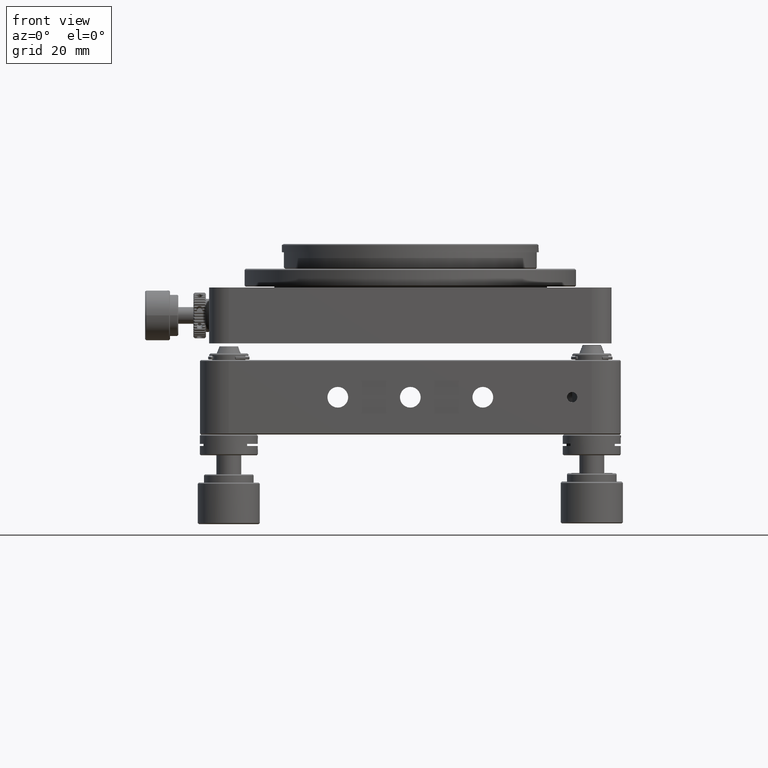
[diagram: clean part render]
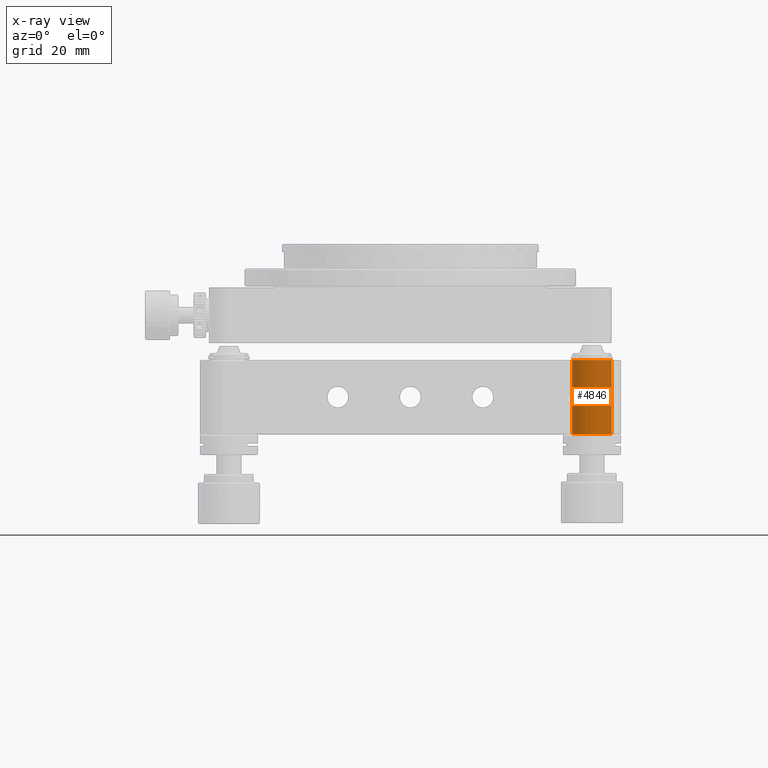
[diagram: x-ray — body ghosted, one internal face saturated and labeled with its STEP entity id]
A machine part, front view, then the same camera in x-ray: the body is ghosted and one INTERNAL B-rep face — a face not visible from any outside direction — is saturated and labeled: STEP entity #4846.
In plain terms, the highlighted cylindrical surface (bore or boss wall) has radius 4.75 mm, axis along (-0, 0, 1).
Its self-contained STEP definition (entity closure, byte-faithful):
#1832 = DIRECTION ( 'NONE',  ( -6.162975822039154730E-31, 1.448299318179201361E-31, 1.000000000000000000 ) ) ;
#4846 = ADVANCED_FACE ( 'NONE', ( #40579, #22729 ), #48692, .T. ) ;
#5202 = DIRECTION ( 'NONE',  ( 6.162975822039154730E-31, -1.448299318179201361E-31, -1.000000000000000000 ) ) ;
#6834 = CIRCLE ( 'NONE', #49616, 4.750000000000004441 ) ;
#7833 = CARTESIAN_POINT ( 'NONE',  ( -51.50000000000003553, 31.34999999999996945, 4.638425379416565519 ) ) ;
#10478 = CARTESIAN_POINT ( 'NONE',  ( -56.25000000000004263, 31.34999999999996945, -20.26056449380676128 ) ) ;
#15561 = CARTESIAN_POINT ( 'NONE',  ( -56.25000000000004263, 31.34999999999996945, 4.638425379416565519 ) ) ;
#16075 = EDGE_CURVE ( 'NONE', #25443, #25443, #6834, .T. ) ;
#22729 = FACE_OUTER_BOUND ( 'NONE', #28692, .T. ) ;
#23159 = AXIS2_PLACEMENT_3D ( 'NONE', #10478, #1832, #47877 ) ;
#25443 = VERTEX_POINT ( 'NONE', #54479 ) ;
#27444 = ORIENTED_EDGE ( 'NONE', *, *, #33850, .T. ) ;
#28394 = DIRECTION ( 'NONE',  ( 1.000000000000000000, 0.000000000000000000, 0.000000000000000000 ) ) ;
#28692 = EDGE_LOOP ( 'NONE', ( #27444 ) ) ;
#32133 = EDGE_LOOP ( 'NONE', ( #38988 ) ) ;
#32577 = DIRECTION ( 'NONE',  ( -6.162975822039154730E-31, 1.448299318179201361E-31, 1.000000000000000000 ) ) ;
#32994 = AXIS2_PLACEMENT_3D ( 'NONE', #15561, #32577, #28394 ) ;
#33477 = VERTEX_POINT ( 'NONE', #7833 ) ;
#33850 = EDGE_CURVE ( 'NONE', #33477, #33477, #49988, .T. ) ;
#38988 = ORIENTED_EDGE ( 'NONE', *, *, #16075, .T. ) ;
#39225 = CARTESIAN_POINT ( 'NONE',  ( -56.25000000000004263, 31.34999999999996945, 22.53842537941656232 ) ) ;
#40579 = FACE_OUTER_BOUND ( 'NONE', #32133, .T. ) ;
#47877 = DIRECTION ( 'NONE',  ( 1.000000000000000000, 0.000000000000000000, 0.000000000000000000 ) ) ;
#47891 = DIRECTION ( 'NONE',  ( 1.000000000000000000, 0.000000000000000000, 0.000000000000000000 ) ) ;
#48692 = CYLINDRICAL_SURFACE ( 'NONE', #23159, 4.750000000000004441 ) ;
#49616 = AXIS2_PLACEMENT_3D ( 'NONE', #39225, #5202, #47891 ) ;
#49988 = CIRCLE ( 'NONE', #32994, 4.750000000000004441 ) ;
#54479 = CARTESIAN_POINT ( 'NONE',  ( -51.50000000000003553, 31.34999999999996945, 22.53842537941656232 ) ) ;